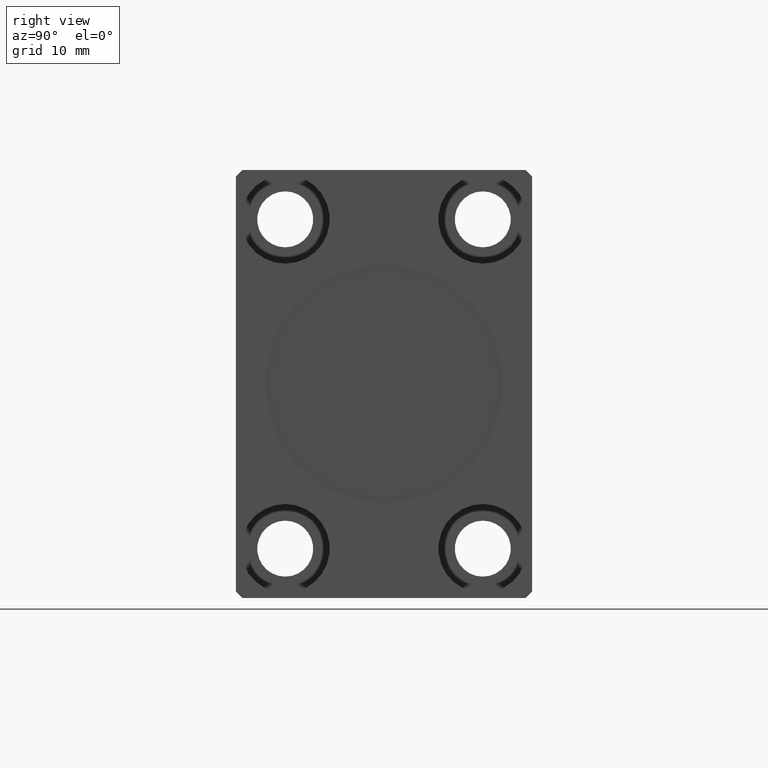
[diagram: clean part render]
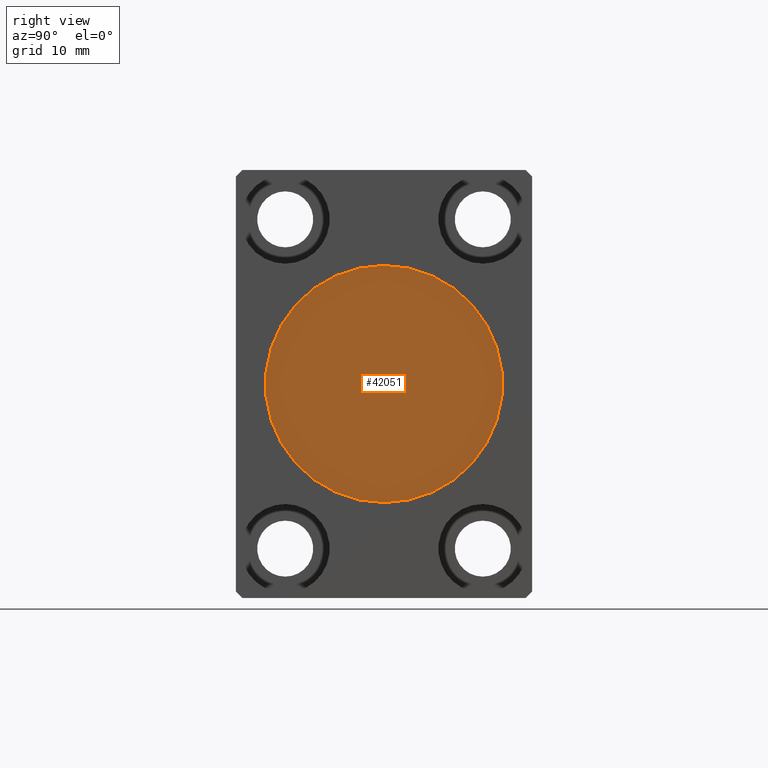
[diagram: same view with one face highlighted and labeled with its STEP entity id]
A machine part, right view. The second image highlights one B-rep face of the part: STEP entity #42051.
In plain terms, the highlighted planar face has unit normal (1, 0, 0).
Its self-contained STEP definition (entity closure, byte-faithful):
#678 = CIRCLE ( 'NONE', #11665, 18.00000000000000000 ) ;
#5761 = EDGE_LOOP ( 'NONE', ( #36475, #37221 ) ) ;
#5800 = DIRECTION ( 'NONE',  ( 1.000000000000000000, 0.000000000000000000, 0.000000000000000000 ) ) ;
#6274 = EDGE_CURVE ( 'NONE', #31308, #11205, #33163, .T. ) ;
#8595 = DIRECTION ( 'NONE',  ( 0.000000000000000000, 0.000000000000000000, -1.000000000000000000 ) ) ;
#10871 = DIRECTION ( 'NONE',  ( 0.000000000000000000, 0.000000000000000000, -1.000000000000000000 ) ) ;
#11205 = VERTEX_POINT ( 'NONE', #33828 ) ;
#11665 = AXIS2_PLACEMENT_3D ( 'NONE', #17101, #32992, #10871 ) ;
#15919 = AXIS2_PLACEMENT_3D ( 'NONE', #25338, #5800, #8595 ) ;
#17101 = CARTESIAN_POINT ( 'NONE',  ( 77.79999999999999716, 0.000000000000000000, 0.000000000000000000 ) ) ;
#18967 = CARTESIAN_POINT ( 'NONE',  ( 77.79999999999999716, 2.204364238465235428E-15, 18.00000000000000000 ) ) ;
#23691 = DIRECTION ( 'NONE',  ( 0.000000000000000000, 0.000000000000000000, -1.000000000000000000 ) ) ;
#23901 = DIRECTION ( 'NONE',  ( 1.000000000000000000, 0.000000000000000000, 0.000000000000000000 ) ) ;
#24911 = FACE_OUTER_BOUND ( 'NONE', #5761, .T. ) ;
#25338 = CARTESIAN_POINT ( 'NONE',  ( 77.79999999999999716, 0.000000000000000000, 0.000000000000000000 ) ) ;
#27540 = CARTESIAN_POINT ( 'NONE',  ( 77.79999999999999716, 0.000000000000000000, 0.000000000000000000 ) ) ;
#31091 = AXIS2_PLACEMENT_3D ( 'NONE', #27540, #23901, #23691 ) ;
#31308 = VERTEX_POINT ( 'NONE', #18967 ) ;
#32992 = DIRECTION ( 'NONE',  ( 1.000000000000000000, 0.000000000000000000, 0.000000000000000000 ) ) ;
#33163 = CIRCLE ( 'NONE', #31091, 18.00000000000000000 ) ;
#33828 = CARTESIAN_POINT ( 'NONE',  ( 77.79999999999999716, 0.000000000000000000, -18.00000000000000000 ) ) ;
#35662 = EDGE_CURVE ( 'NONE', #11205, #31308, #678, .T. ) ;
#36475 = ORIENTED_EDGE ( 'NONE', *, *, #35662, .T. ) ;
#37221 = ORIENTED_EDGE ( 'NONE', *, *, #6274, .T. ) ;
#37999 = PLANE ( 'NONE',  #15919 ) ;
#42051 = ADVANCED_FACE ( 'NONE', ( #24911 ), #37999, .T. ) ;